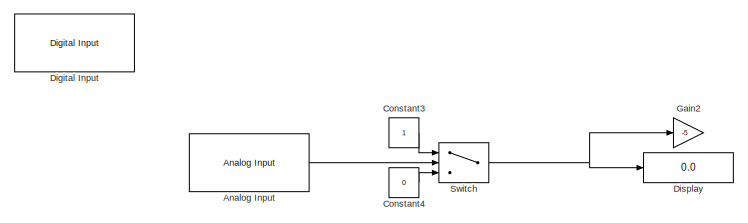
[diagram: root canvas - part 1/2, top left region]
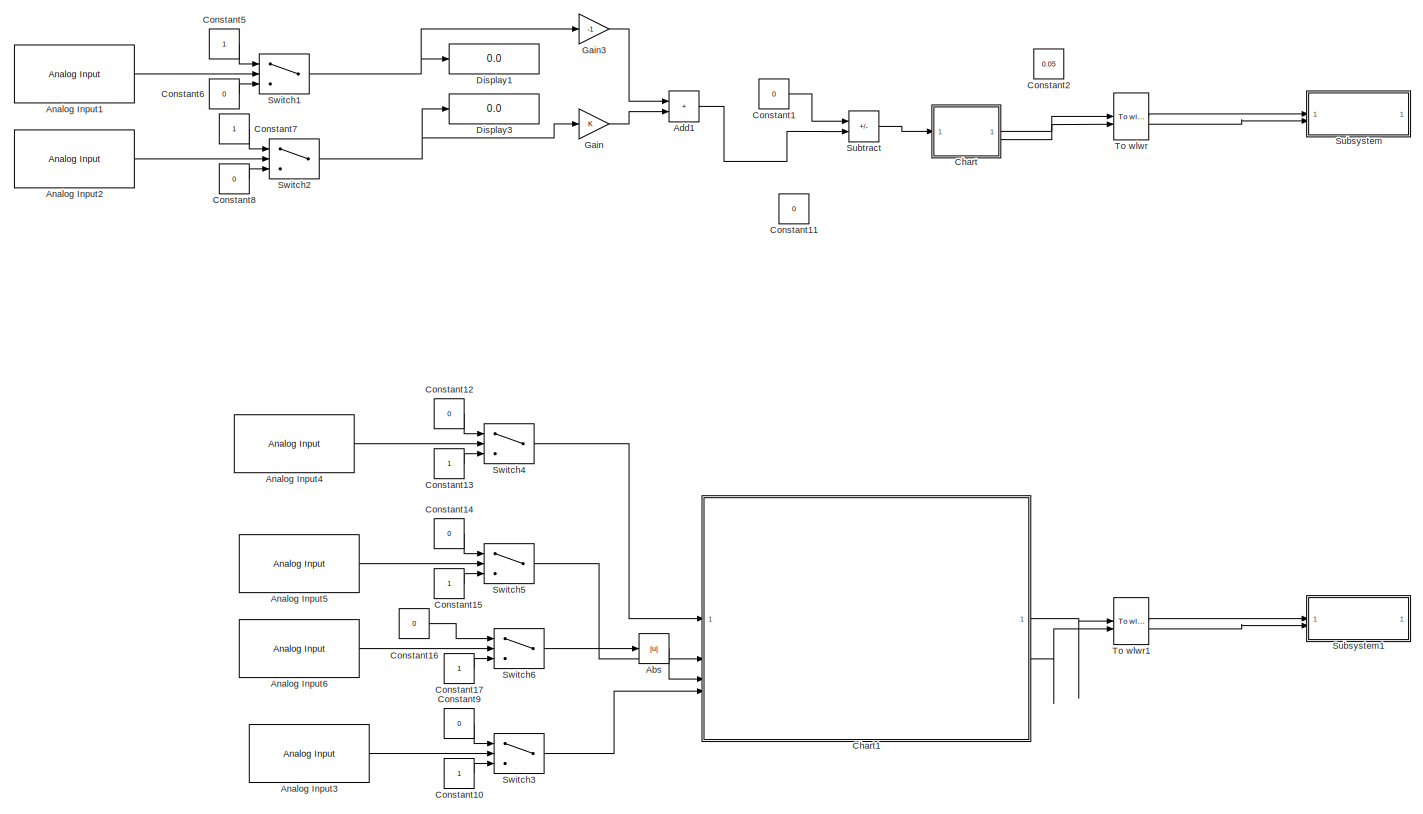
[diagram: root canvas - part 2/2, most of the canvas]
MODEL slx_7cb81e334e29
KIND model
CONFIG AbsTol = auto
CONFIG EnableMultiTasking = off
CONFIG FixedStep = 0.01
CONFIG MaxStep = auto
CONFIG MinStep = auto
CONFIG RelTol = 1e-3
CONFIG SampleTimeConstraint = Unconstrained
CONFIG SolverName = FixedStepDiscrete
CONFIG StartTime = 0.0
CONFIG StopTime = 15
BLOCK [Abs] Abs
  SaturateOnIntegerOverflow = off
BLOCK [Sum] Add1
  Commented = on
  IconShape = rectangular
BLOCK [Reference] Analog Input  REF=arduinolib/Analog Input
  Commented = on
  SourceBlock = arduinolib/Analog Input
  SourceType = Arduino Analog Input
BLOCK [Reference] Analog Input1  REF=arduinolib/Analog Input
  Commented = on
  SourceBlock = arduinolib/Analog Input
  SourceType = Arduino Analog Input
BLOCK [Reference] Analog Input2  REF=arduinolib/Analog Input
  Commented = on
  SourceBlock = arduinolib/Analog Input
  SourceType = Arduino Analog Input
BLOCK [Reference] Analog Input3  REF=arduinolib/Analog Input
  SourceBlock = arduinolib/Analog Input
  SourceType = Arduino Analog Input
BLOCK [Reference] Analog Input4  REF=arduinolib/Analog Input
  SourceBlock = arduinolib/Analog Input
  SourceType = Arduino Analog Input
BLOCK [Reference] Analog Input5  REF=arduinolib/Analog Input
  SourceBlock = arduinolib/Analog Input
  SourceType = Arduino Analog Input
BLOCK [Reference] Analog Input6  REF=arduinolib/Analog Input
  SourceBlock = arduinolib/Analog Input
  SourceType = Arduino Analog Input
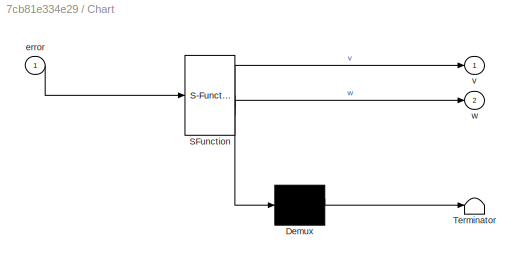
BLOCK [SubSystem] Chart
  Commented = on
  ErrorFcn = Stateflow.Translate.translate
  PermitHierarchicalResolution = ExplicitOnly
  SFBlockType = Chart
  TreatAsAtomicUnit = on
BLOCK [Demux] Chart/ Demux 
  Outputs = 1
BLOCK [S-Function] Chart/ SFunction 
  EnableBusSupport = on
  FunctionName = sf_sfun
  PortCounts = [1 3]
  SFcnIsStateOwnerBlock = off
  SFunctionDeploymentMode = off
  Tag = Stateflow S-Function 3
BLOCK [Terminator] Chart/ Terminator 
BLOCK [Inport] Chart/error
BLOCK [Outport] Chart/v
BLOCK [Outport] Chart/w
  Port = 2
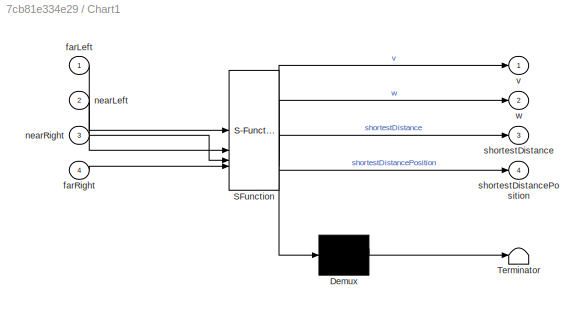
BLOCK [SubSystem] Chart1
  ErrorFcn = Stateflow.Translate.translate
  PermitHierarchicalResolution = ExplicitOnly
  SFBlockType = Chart
  TreatAsAtomicUnit = on
BLOCK [Demux] Chart1/ Demux 
  Outputs = 1
BLOCK [S-Function] Chart1/ SFunction 
  EnableBusSupport = on
  FunctionName = sf_sfun
  PortCounts = [4 5]
  SFcnIsStateOwnerBlock = off
  SFunctionDeploymentMode = off
  Tag = Stateflow S-Function 1
BLOCK [Terminator] Chart1/ Terminator 
BLOCK [Inport] Chart1/farLeft
BLOCK [Inport] Chart1/farRight
  Port = 4
BLOCK [Inport] Chart1/nearLeft
  Port = 2
BLOCK [Inport] Chart1/nearRight
  Port = 3
BLOCK [Outport] Chart1/shortestDistance
  Port = 3
BLOCK [Outport] Chart1/shortestDistancePosition
  Port = 4
BLOCK [Outport] Chart1/v
BLOCK [Outport] Chart1/w
  Port = 2
BLOCK [Constant] Constant1
  Commented = on
  Value = 0
BLOCK [Constant] Constant10
BLOCK [Constant] Constant11
  Commented = on
  Value = 0
BLOCK [Constant] Constant12
  Value = 0
BLOCK [Constant] Constant13
BLOCK [Constant] Constant14
  Value = 0
BLOCK [Constant] Constant15
BLOCK [Constant] Constant16
  Value = 0
BLOCK [Constant] Constant17
BLOCK [Constant] Constant2
  Commented = on
  Value = 0.05
BLOCK [Constant] Constant3
  Commented = on
BLOCK [Constant] Constant4
  Commented = on
  Value = 0
BLOCK [Constant] Constant5
  Commented = on
BLOCK [Constant] Constant6
  Commented = on
  Value = 0
BLOCK [Constant] Constant7
  Commented = on
BLOCK [Constant] Constant8
  Commented = on
  Value = 0
BLOCK [Constant] Constant9
  Value = 0
BLOCK [Reference] Digital Input  REF=arduinolib/Digital Input
  Commented = on
  SourceBlock = arduinolib/Digital Input
  SourceType = Arduino Digital Input
BLOCK [Display] Display
  Commented = on
  Decimation = 1
BLOCK [Display] Display1
  Commented = on
  Decimation = 1
BLOCK [Display] Display3
  Commented = on
  Decimation = 1
BLOCK [Gain] Gain
  Commented = on
BLOCK [Gain] Gain2
  Commented = on
  Gain = -5
BLOCK [Gain] Gain3
  Commented = on
  Gain = -1
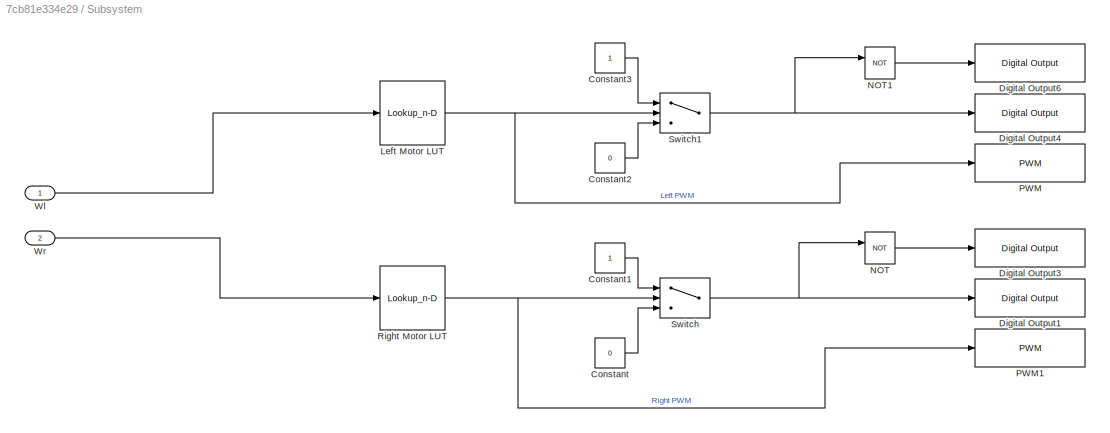
BLOCK [SubSystem] Subsystem
  Commented = on
  LibrarySourceBlock = hdlsllib/Ports &\nSubsystems/Subsystem
BLOCK [Constant] Subsystem/Constant
  Value = 0
BLOCK [Constant] Subsystem/Constant1
BLOCK [Constant] Subsystem/Constant2
  Value = 0
BLOCK [Constant] Subsystem/Constant3
BLOCK [Reference] Subsystem/Digital Output1  REF=arduinolib/Digital Output
  SourceBlock = arduinolib/Digital Output
  SourceType = Arduino Digital Output
BLOCK [Reference] Subsystem/Digital Output3  REF=arduinolib/Digital Output
  SourceBlock = arduinolib/Digital Output
  SourceType = Arduino Digital Output
BLOCK [Reference] Subsystem/Digital Output4  REF=arduinolib/Digital Output
  SourceBlock = arduinolib/Digital Output
  SourceType = Arduino Digital Output
BLOCK [Reference] Subsystem/Digital Output6  REF=arduinolib/Digital Output
  SourceBlock = arduinolib/Digital Output
  SourceType = Arduino Digital Output
BLOCK [Lookup_n-D] Subsystem/Left Motor LUT
  BreakpointsForDimension1 = WheelSpeed
  ExtrapMethod = Clip
  InputPortMap = u0
  InternalRulePriority = Speed
  InterpMethod = Nearest
  NumberOfTableDimensions = 1
  RndMeth = Simplest
  Table = InputPWM
BLOCK [Logic] Subsystem/NOT
  AllPortsSameDT = off
  IconShape = distinctive
  Operator = NOT
  OutDataTypeStr = boolean
BLOCK [Logic] Subsystem/NOT1
  AllPortsSameDT = off
  IconShape = distinctive
  Operator = NOT
  OutDataTypeStr = boolean
BLOCK [Reference] Subsystem/PWM  REF=arduinolib/PWM
  SourceBlock = arduinolib/PWM
  SourceType = Arduino PWM
BLOCK [Reference] Subsystem/PWM1  REF=arduinolib/PWM
  SourceBlock = arduinolib/PWM
  SourceType = Arduino PWM
BLOCK [Lookup_n-D] Subsystem/Right Motor LUT
  BreakpointsForDimension1 = WheelSpeed
  ExtrapMethod = Clip
  InputPortMap = u0
  InternalRulePriority = Speed
  InterpMethod = Nearest
  NumberOfTableDimensions = 1
  RndMeth = Simplest
  Table = InputPWM
BLOCK [Switch] Subsystem/Switch
  Criteria = u2 > Threshold
  InputSameDT = off
  SaturateOnIntegerOverflow = off
BLOCK [Switch] Subsystem/Switch1
  Criteria = u2 > Threshold
  InputSameDT = off
  SaturateOnIntegerOverflow = off
BLOCK [Inport] Subsystem/Wl
BLOCK [Inport] Subsystem/Wr
  Port = 2
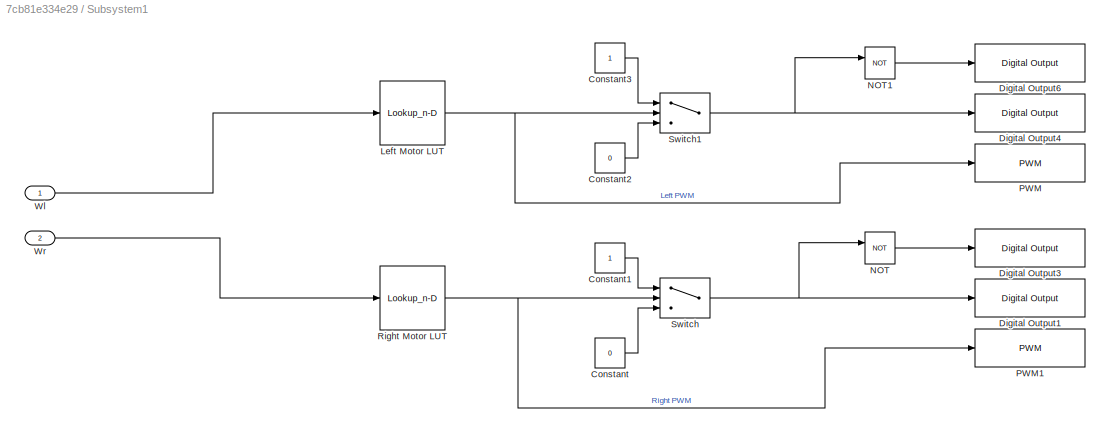
BLOCK [SubSystem] Subsystem1
  LibrarySourceBlock = hdlsllib/Ports &\nSubsystems/Subsystem
BLOCK [Constant] Subsystem1/Constant
  Value = 0
BLOCK [Constant] Subsystem1/Constant1
BLOCK [Constant] Subsystem1/Constant2
  Value = 0
BLOCK [Constant] Subsystem1/Constant3
BLOCK [Reference] Subsystem1/Digital Output1  REF=arduinolib/Digital Output
  SourceBlock = arduinolib/Digital Output
  SourceType = Arduino Digital Output
BLOCK [Reference] Subsystem1/Digital Output3  REF=arduinolib/Digital Output
  SourceBlock = arduinolib/Digital Output
  SourceType = Arduino Digital Output
BLOCK [Reference] Subsystem1/Digital Output4  REF=arduinolib/Digital Output
  SourceBlock = arduinolib/Digital Output
  SourceType = Arduino Digital Output
BLOCK [Reference] Subsystem1/Digital Output6  REF=arduinolib/Digital Output
  SourceBlock = arduinolib/Digital Output
  SourceType = Arduino Digital Output
BLOCK [Lookup_n-D] Subsystem1/Left Motor LUT
  BreakpointsForDimension1 = WheelSpeed
  ExtrapMethod = Clip
  InputPortMap = u0
  InternalRulePriority = Speed
  InterpMethod = Nearest
  NumberOfTableDimensions = 1
  RndMeth = Simplest
  Table = InputPWM
BLOCK [Logic] Subsystem1/NOT
  AllPortsSameDT = off
  IconShape = distinctive
  Operator = NOT
  OutDataTypeStr = boolean
BLOCK [Logic] Subsystem1/NOT1
  AllPortsSameDT = off
  IconShape = distinctive
  Operator = NOT
  OutDataTypeStr = boolean
BLOCK [Reference] Subsystem1/PWM  REF=arduinolib/PWM
  SourceBlock = arduinolib/PWM
  SourceType = Arduino PWM
BLOCK [Reference] Subsystem1/PWM1  REF=arduinolib/PWM
  SourceBlock = arduinolib/PWM
  SourceType = Arduino PWM
BLOCK [Lookup_n-D] Subsystem1/Right Motor LUT
  BreakpointsForDimension1 = WheelSpeed
  ExtrapMethod = Clip
  InputPortMap = u0
  InternalRulePriority = Speed
  InterpMethod = Nearest
  NumberOfTableDimensions = 1
  RndMeth = Simplest
  Table = InputPWM
BLOCK [Switch] Subsystem1/Switch
  Criteria = u2 > Threshold
  InputSameDT = off
  SaturateOnIntegerOverflow = off
BLOCK [Switch] Subsystem1/Switch1
  Criteria = u2 > Threshold
  InputSameDT = off
  SaturateOnIntegerOverflow = off
BLOCK [Inport] Subsystem1/Wl
BLOCK [Inport] Subsystem1/Wr
  Port = 2
BLOCK [Sum] Subtract
  Commented = on
  IconShape = rectangular
  Inputs = +-
BLOCK [Switch] Switch
  Commented = on
  InputSameDT = off
  SaturateOnIntegerOverflow = off
  Threshold = 2
BLOCK [Switch] Switch1
  Commented = on
  InputSameDT = off
  SaturateOnIntegerOverflow = off
  Threshold = 2
BLOCK [Switch] Switch2
  Commented = on
  InputSameDT = off
  SaturateOnIntegerOverflow = off
  Threshold = 2
BLOCK [Switch] Switch3
  InputSameDT = off
  SaturateOnIntegerOverflow = off
  Threshold = 2
BLOCK [Switch] Switch4
  InputSameDT = off
  SaturateOnIntegerOverflow = off
  Threshold = 2
BLOCK [Switch] Switch5
  InputSameDT = off
  SaturateOnIntegerOverflow = off
  Threshold = 2
BLOCK [Switch] Switch6
  InputSameDT = off
  SaturateOnIntegerOverflow = off
  Threshold = 2
BLOCK [Reference] To wlwr  REF=mobileRoboticsTrainingLib/To wlwr
  Commented = on
  SourceBlock = mobileRoboticsTrainingLib/To wlwr
  SourceProductName = Mobile Robotics Training Library
  SourceType = To wlwr
BLOCK [Reference] To wlwr1  REF=mobileRoboticsTrainingLib/To wlwr
  SourceBlock = mobileRoboticsTrainingLib/To wlwr
  SourceProductName = Mobile Robotics Training Library
  SourceType = To wlwr
LINE Abs:1 -> Chart1:3
LINE Add1:1 -> Subtract:2
LINE Analog Input1:1 -> Switch1:2
LINE Analog Input2:1 -> Switch2:2
LINE Analog Input3:1 -> Switch3:2
LINE Analog Input4:1 -> Switch4:2
LINE Analog Input5:1 -> Switch5:2
LINE Analog Input6:1 -> Switch6:2
LINE Analog Input:1 -> Switch:2
LINE Chart1:1 -> To wlwr1:1
LINE Chart1:2 -> To wlwr1:2
LINE Chart:1 -> To wlwr:1
LINE Chart:2 -> To wlwr:2
LINE Constant10:1 -> Switch3:3
LINE Constant12:1 -> Switch4:1
LINE Constant13:1 -> Switch4:3
LINE Constant14:1 -> Switch5:1
LINE Constant15:1 -> Switch5:3
LINE Constant16:1 -> Switch6:1
LINE Constant17:1 -> Switch6:3
LINE Constant1:1 -> Subtract:1
LINE Constant3:1 -> Switch:1
LINE Constant4:1 -> Switch:3
LINE Constant5:1 -> Switch1:1
LINE Constant6:1 -> Switch1:3
LINE Constant7:1 -> Switch2:1
LINE Constant8:1 -> Switch2:3
LINE Constant9:1 -> Switch3:1
LINE Gain3:1 -> Add1:1
LINE Gain:1 -> Add1:2
LINE Subsystem/Constant1:1 -> Subsystem/Switch:1
LINE Subsystem/Constant2:1 -> Subsystem/Switch1:3
LINE Subsystem/Constant3:1 -> Subsystem/Switch1:1
LINE Subsystem/Constant:1 -> Subsystem/Switch:3
NET Subsystem/Left Motor LUT:1 -> Subsystem/PWM:1, Subsystem/Switch1:2
LINE Subsystem/NOT1:1 -> Subsystem/Digital Output6:1
LINE Subsystem/NOT:1 -> Subsystem/Digital Output3:1
NET Subsystem/Right Motor LUT:1 -> Subsystem/PWM1:1, Subsystem/Switch:2
NET Subsystem/Switch1:1 -> Subsystem/Digital Output4:1, Subsystem/NOT1:1
NET Subsystem/Switch:1 -> Subsystem/Digital Output1:1, Subsystem/NOT:1
LINE Subsystem/Wl:1 -> Subsystem/Left Motor LUT:1
LINE Subsystem/Wr:1 -> Subsystem/Right Motor LUT:1
LINE Subsystem1/Constant1:1 -> Subsystem1/Switch:1
LINE Subsystem1/Constant2:1 -> Subsystem1/Switch1:3
LINE Subsystem1/Constant3:1 -> Subsystem1/Switch1:1
LINE Subsystem1/Constant:1 -> Subsystem1/Switch:3
NET Subsystem1/Left Motor LUT:1 -> Subsystem1/PWM:1, Subsystem1/Switch1:2
LINE Subsystem1/NOT1:1 -> Subsystem1/Digital Output6:1
LINE Subsystem1/NOT:1 -> Subsystem1/Digital Output3:1
NET Subsystem1/Right Motor LUT:1 -> Subsystem1/PWM1:1, Subsystem1/Switch:2
NET Subsystem1/Switch1:1 -> Subsystem1/Digital Output4:1, Subsystem1/NOT1:1
NET Subsystem1/Switch:1 -> Subsystem1/Digital Output1:1, Subsystem1/NOT:1
LINE Subsystem1/Wl:1 -> Subsystem1/Left Motor LUT:1
LINE Subsystem1/Wr:1 -> Subsystem1/Right Motor LUT:1
LINE Subtract:1 -> Chart:1
NET Switch1:1 -> Display1:1, Gain3:1
NET Switch2:1 -> Display3:1, Gain:1
LINE Switch3:1 -> Chart1:4
LINE Switch4:1 -> Chart1:1
LINE Switch5:1 -> Chart1:2
LINE Switch6:1 -> Abs:1
NET Switch:1 -> Display:1, Gain2:1
LINE To wlwr1:1 -> Subsystem1:1
LINE To wlwr1:2 -> Subsystem1:2
LINE To wlwr:1 -> Subsystem:1
LINE To wlwr:2 -> Subsystem:2
note: NET lines group one-source signal fan-out (src -> all destinations, sorted); 1:1 wires keep LINE
CHART Chart1 states=61 transitions=82
  STATE_LABEL 'Initialisation\nentry:\nnumBranches = 0\nshortestDistance = 10 %No Object will be 10m away just used as reference\nshortestDistancePosition =0\n'
  STATE_LABEL 'LineFollowingOnMainLine\nentry:\nv = 0.1\nw= 0\n'
  STATE_LABEL 'Neutral \nentry: w = 0'
  STATE_LABEL 'TurnLeft\nentry:\nw = 1'
  STATE_LABEL 'TurnRight\nentry:\nw = -1'
  STATE_LABEL '[nearRight ==0]'
  STATE_LABEL '[nearRight ==1]'
  STATE_LABEL '[nearLeft ==1]'
  STATE_LABEL '[nearLeft ==0]'
  STATE_LABEL 'Neutral \nentry: w = 0'
  STATE_LABEL 'TurnLeft\nentry:\nw = 1'
  STATE_LABEL 'TurnRight\nentry:\nw = -1'
  STATE_LABEL 'EndOfMaze\nentry:\nv=0\nw=0'
  STATE_LABEL 'RotateRightBranch\nentry:\nv=0\nw=-1.5\nleftBranch = false'
  STATE_LABEL 'Rotate\nentry:\nw= -1.5'
  STATE_LABEL 'ContinueRotateAndSeekNewLine\nentry:\nw= -1.5'
  STATE_LABEL 'StopAndReturn\nentry:\nw = 0'
  STATE_LABEL '[after(2,sec)&&(nearLeft ==0 || nearRight ==0)]'
  STATE_LABEL '[nearLeft ==1 && nearRight ==1]'
  STATE_LABEL 'Rotate\nentry:\nw= -1.5'
  STATE_LABEL 'ContinueRotateAndSeekNewLine\nentry:\nw= -1.5'
  STATE_LABEL 'StopAndReturn\nentry:\nw = 0'
  STATE_LABEL 'TurnBackToMazeToFindShortestObject1\nentry:\nv=0\nw=-1.5\nnumLinesToPass = numBranches-shortestDistancePosition'
  STATE_LABEL 'Rotate\nentry:\nw= -1.5'
  STATE_LABEL 'ContinueRotateAndSeekNewLine\nentry:\nw= -1.5'
  STATE_LABEL 'StopAndReturn\nentry:\nw = 0'
  STATE_LABEL '[after(2,sec)&&(nearLeft ==0 || nearRight ==0)]'
  STATE_LABEL '[nearLeft ==1 && nearRight ==1]'
  STATE_LABEL 'Rotate\nentry:\nw= -1.5'
  STATE_LABEL 'ContinueRotateAndSeekNewLine\nentry:\nw= -1.5'
  STATE_LABEL 'StopAndReturn\nentry:\nw = 0'
  STATE_LABEL 'StopAndDetect\nentry:\nv=0\nw=0\nnumBranches = numBranches + 1'
  STATE_LABEL 'MeasureAndStoreDistance\n%Measure the distance using ultrasonic sensor\n%using variable currentDistance and light up LED\n'
  STATE_LABEL 'UpdateClosestDistance\n%Onlyupdates if shorter distance else carries on\nentry:\nshortestDistancePosition = numObjects\nshortestDistance = distance'
  STATE_LABEL '[distance < shortestDistance]'
  STATE_LABEL 'MeasureAndStoreDistance\n%Measure the distance using ultrasonic sensor\n%using variable currentDistance and light up LED\n'
  STATE_LABEL 'UpdateClosestDistance\n%Onlyupdates if shorter distance else carries on\nentry:\nshortestDistancePosition = numObjects\nshortestDistance = distance'
  STATE_LABEL 'TurnBackToMaze\nentry:\nv=0\nw=-1.5'
  STATE_LABEL 'Rotate\nentry:\nw= -1.5'
  STATE_LABEL 'ContinueRotateAndSeekNewLine\nentry:\nw= -1.5'
CHART Chart states=3 transitions=7
  STATE_LABEL 'Straight\nentry:\nw =0\nv= 0.06'
  STATE_LABEL 'SteerRight\nentry:\nw = -1\nv=0.045'
  STATE_LABEL 'SteerLeft\nentry:\nw= 3.8\nv=0.045'
CHART  states=0 transitions=0
CHART  states=0 transitions=0
